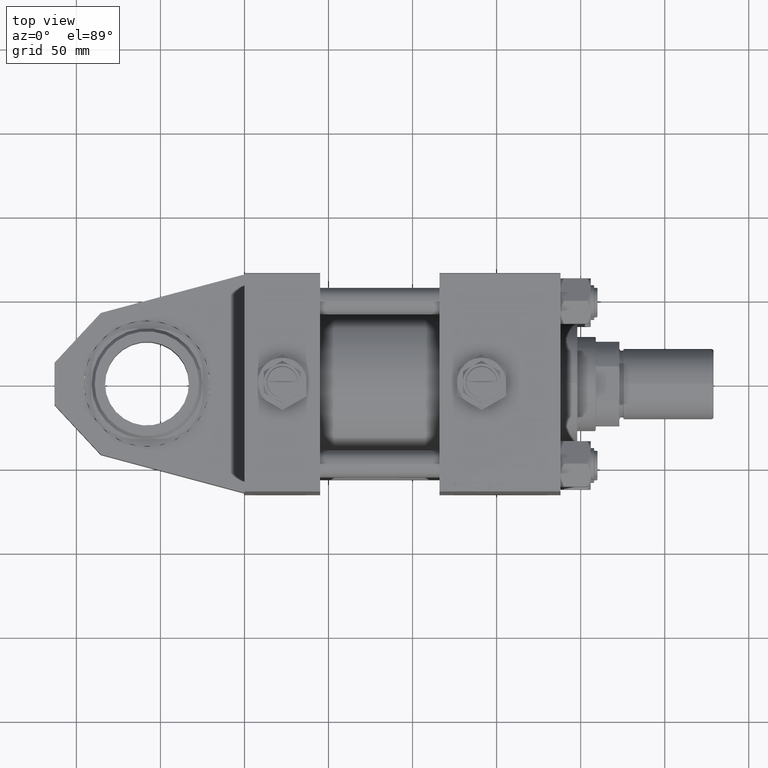
[diagram: clean part render]
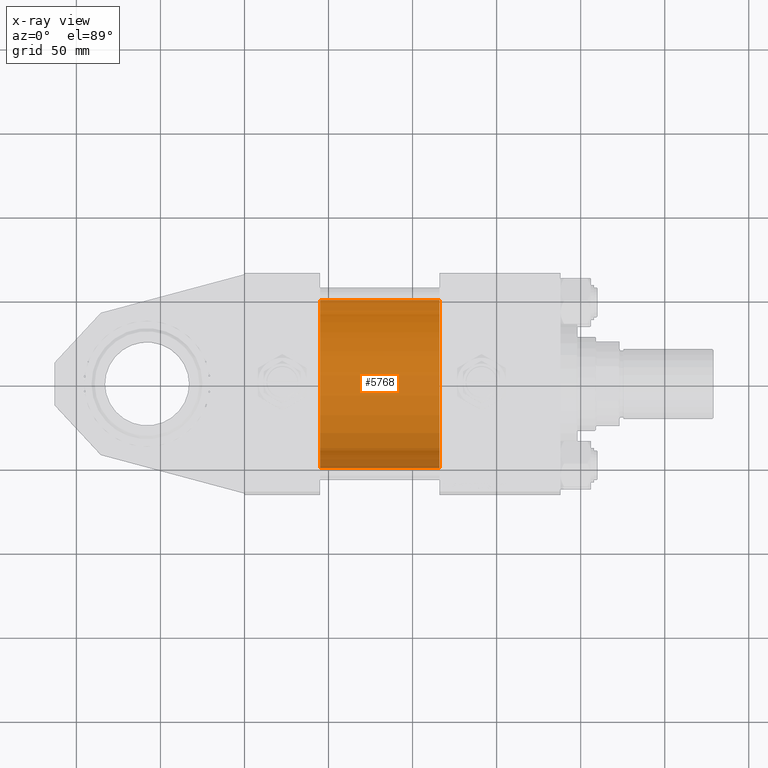
[diagram: x-ray — body ghosted, one internal face saturated and labeled with its STEP entity id]
A machine part, top view, then the same camera in x-ray: the body is ghosted and one INTERNAL B-rep face — a face not visible from any outside direction — is saturated and labeled: STEP entity #5768.
In plain terms, the highlighted cylindrical surface (partial cylindrical patch) has radius 50 mm, axis along (-1, 0, -0).
Its self-contained STEP definition (entity closure, byte-faithful):
#151 = CARTESIAN_POINT ( 'NONE',  ( 115.9999999999999858, -2.602085213965210642E-15, 0.000000000000000000 ) ) ;
#1790 = CARTESIAN_POINT ( 'NONE',  ( 45.00000000000000000, -2.602085213965210642E-15, 50.00000000000000000 ) ) ;
#2413 = AXIS2_PLACEMENT_3D ( 'NONE', #26717, #27775, #35309 ) ;
#5768 = ADVANCED_FACE ( 'NONE', ( #40399 ), #48471, .F. ) ;
#5802 = VECTOR ( 'NONE', #17775, 1000.000000000000000 ) ;
#6010 = ORIENTED_EDGE ( 'NONE', *, *, #12062, .T. ) ;
#7764 = EDGE_CURVE ( 'NONE', #22171, #23020, #19776, .T. ) ;
#8464 = CIRCLE ( 'NONE', #2413, 50.00000000000000000 ) ;
#11361 = DIRECTION ( 'NONE',  ( -1.000000000000000000, -0.000000000000000000, -0.000000000000000000 ) ) ;
#12062 = EDGE_CURVE ( 'NONE', #22171, #23978, #41345, .T. ) ;
#17775 = DIRECTION ( 'NONE',  ( -1.000000000000000000, -0.000000000000000000, -0.000000000000000000 ) ) ;
#17878 = AXIS2_PLACEMENT_3D ( 'NONE', #48214, #11361, #48723 ) ;
#17977 = CARTESIAN_POINT ( 'NONE',  ( 45.00000000000000000, 3.521148781771555838E-15, -50.00000000000000000 ) ) ;
#18036 = LINE ( 'NONE', #26119, #5802 ) ;
#19776 = LINE ( 'NONE', #32408, #42890 ) ;
#21553 = AXIS2_PLACEMENT_3D ( 'NONE', #151, #28133, #23826 ) ;
#22171 = VERTEX_POINT ( 'NONE', #33157 ) ;
#23020 = VERTEX_POINT ( 'NONE', #1790 ) ;
#23826 = DIRECTION ( 'NONE',  ( 0.000000000000000000, 0.000000000000000000, -1.000000000000000000 ) ) ;
#23978 = VERTEX_POINT ( 'NONE', #50157 ) ;
#26119 = CARTESIAN_POINT ( 'NONE',  ( 115.9999999999999858, 3.521148781771555838E-15, -50.00000000000000000 ) ) ;
#26717 = CARTESIAN_POINT ( 'NONE',  ( 45.00000000000000000, -2.602085213965210642E-15, 0.000000000000000000 ) ) ;
#27775 = DIRECTION ( 'NONE',  ( 1.000000000000000000, 0.000000000000000000, 0.000000000000000000 ) ) ;
#28133 = DIRECTION ( 'NONE',  ( 1.000000000000000000, 0.000000000000000000, 0.000000000000000000 ) ) ;
#32408 = CARTESIAN_POINT ( 'NONE',  ( 115.9999999999999858, -2.602085213965210642E-15, 50.00000000000000000 ) ) ;
#33157 = CARTESIAN_POINT ( 'NONE',  ( 115.9999999999999858, -2.602085213965210642E-15, 50.00000000000000000 ) ) ;
#35309 = DIRECTION ( 'NONE',  ( 0.000000000000000000, 0.000000000000000000, -1.000000000000000000 ) ) ;
#37807 = ORIENTED_EDGE ( 'NONE', *, *, #7764, .F. ) ;
#40399 = FACE_OUTER_BOUND ( 'NONE', #46295, .T. ) ;
#41345 = CIRCLE ( 'NONE', #21553, 50.00000000000000000 ) ;
#42890 = VECTOR ( 'NONE', #48816, 1000.000000000000000 ) ;
#45153 = EDGE_CURVE ( 'NONE', #23978, #45430, #18036, .T. ) ;
#45430 = VERTEX_POINT ( 'NONE', #17977 ) ;
#46295 = EDGE_LOOP ( 'NONE', ( #6010, #53150, #51193, #37807 ) ) ;
#47952 = EDGE_CURVE ( 'NONE', #23020, #45430, #8464, .T. ) ;
#48214 = CARTESIAN_POINT ( 'NONE',  ( 115.9999999999999858, -2.602085213965210642E-15, 0.000000000000000000 ) ) ;
#48471 = CYLINDRICAL_SURFACE ( 'NONE', #17878, 50.00000000000000000 ) ;
#48723 = DIRECTION ( 'NONE',  ( 0.000000000000000000, 0.000000000000000000, 1.000000000000000000 ) ) ;
#48816 = DIRECTION ( 'NONE',  ( -1.000000000000000000, -0.000000000000000000, -0.000000000000000000 ) ) ;
#50157 = CARTESIAN_POINT ( 'NONE',  ( 115.9999999999999858, 3.521148781771555838E-15, -50.00000000000000000 ) ) ;
#51193 = ORIENTED_EDGE ( 'NONE', *, *, #47952, .F. ) ;
#53150 = ORIENTED_EDGE ( 'NONE', *, *, #45153, .T. ) ;